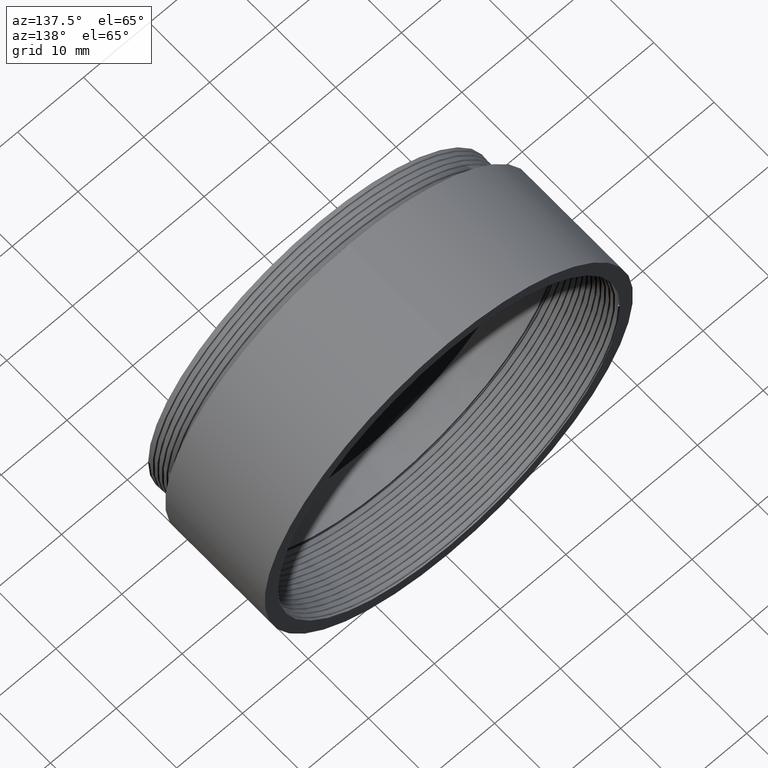
[diagram: clean part render]
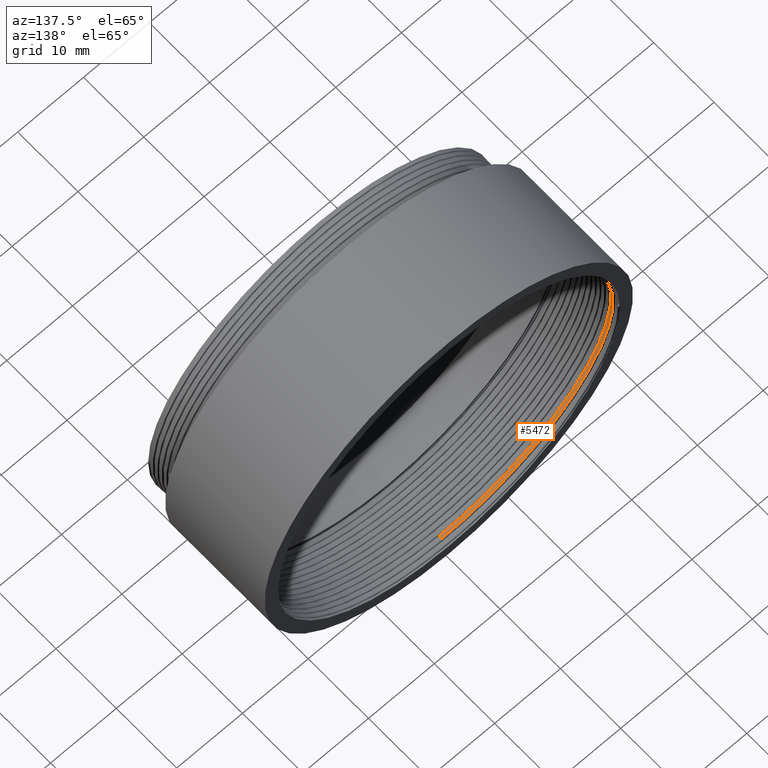
[diagram: same view with one face highlighted and labeled with its STEP entity id]
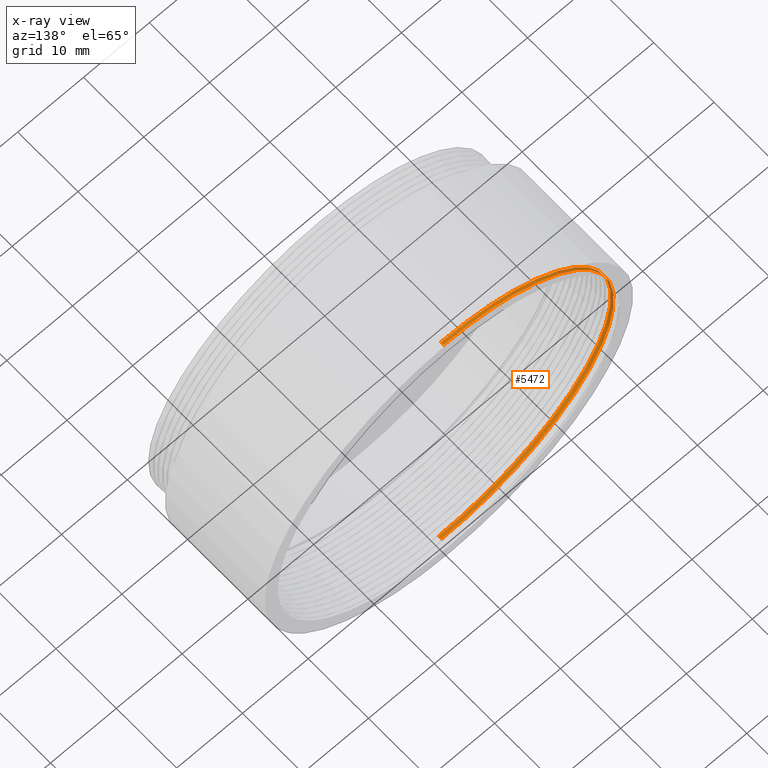
[diagram: x-ray of the same camera — body ghosted, the highlighted face saturated]
A machine part, auxiliary view. The second image highlights one B-rep face of the part: STEP entity #5472.
The next image is the same camera in x-ray: the body ghosted, the highlighted face saturated — about 0% of this face is hidden behind the body in this view.
In plain terms, the highlighted cylindrical surface (partial cylindrical patch) has radius 26 mm, axis along (-0, -1, -0).
Its self-contained STEP definition (entity closure, byte-faithful):
#5 = CARTESIAN_POINT ( 'NONE',  ( -26.00000000000000000, 19.99999999999999645, 0.000000000000000000 ) ) ;
#90 = CARTESIAN_POINT ( 'NONE',  ( -10.76955262170041117, 20.33156250086714678, -26.00000000000006395 ) ) ;
#208 = CARTESIAN_POINT ( 'NONE',  ( -25.99999999999999289, 20.51906250086715033, 10.76955262170048933 ) ) ;
#267 = VERTEX_POINT ( 'NONE', #2286 ) ;
#321 = CARTESIAN_POINT ( 'NONE',  ( -25.99999999999999289, 20.04687500000000000, 10.76955262170048933 ) ) ;
#377 = DIRECTION ( 'NONE',  ( -0.000000000000000000, -1.000000000000000000, -0.000000000000000000 ) ) ;
#395 = CARTESIAN_POINT ( 'NONE',  ( -1.592040838891559095E-15, 19.81249999999999645, -26.00000000000000000 ) ) ;
#583 = CARTESIAN_POINT ( 'NONE',  ( -18.38477631085023489, 20.37843750086715033, -18.38477631085023489 ) ) ;
#894 = CARTESIAN_POINT ( 'NONE',  ( -1.592040838891559095E-15, 20.28468750086715033, -26.00000000000000000 ) ) ;
#1119 = VERTEX_POINT ( 'NONE', #395 ) ;
#1277 = CARTESIAN_POINT ( 'NONE',  ( -18.38477631085022779, 20.09374999999999645, 18.38477631085023845 ) ) ;
#1486 = CARTESIAN_POINT ( 'NONE',  ( 4.776122516674677089E-15, 20.65968750086715033, 26.00000000000000000 ) ) ;
#1524 = DIRECTION ( 'NONE',  ( 0.000000000000000000, 0.000000000000000000, -1.000000000000000000 ) ) ;
#1605 = CARTESIAN_POINT ( 'NONE',  ( 0.000000000000000000, 0.000000000000000000, 0.000000000000000000 ) ) ;
#1630 = EDGE_CURVE ( 'NONE', #267, #1119, #3495, .T. ) ;
#1697 = CARTESIAN_POINT ( 'NONE',  ( -10.76955262170037209, 19.85937500000000355, -26.00000000000010303 ) ) ;
#1741 = AXIS2_PLACEMENT_3D ( 'NONE', #1605, #3299, #1524 ) ;
#1828 = ORIENTED_EDGE ( 'NONE', *, *, #1630, .T. ) ;
#2102 = DIRECTION ( 'NONE',  ( -0.000000000000000000, -1.000000000000000000, -0.000000000000000000 ) ) ;
#2286 = CARTESIAN_POINT ( 'NONE',  ( 4.776122516674677089E-15, 20.18749999999999645, 26.00000000000000000 ) ) ;
#2346 = CARTESIAN_POINT ( 'NONE',  ( -18.38477631085022779, 20.56593750086715033, 18.38477631085023845 ) ) ;
#2357 = EDGE_CURVE ( 'NONE', #2580, #267, #4627, .T. ) ;
#2359 = CARTESIAN_POINT ( 'NONE',  ( 4.776122516674677089E-15, 20.65968750086715033, 26.00000000000000000 ) ) ;
#2493 = LINE ( 'NONE', #4181, #3529 ) ;
#2533 = CARTESIAN_POINT ( 'NONE',  ( -10.76955262170057992, 20.14062500000000355, 25.99999999999988987 ) ) ;
#2580 = VERTEX_POINT ( 'NONE', #2359 ) ;
#2849 = FACE_OUTER_BOUND ( 'NONE', #3673, .T. ) ;
#2940 = CARTESIAN_POINT ( 'NONE',  ( -18.38477631085023489, 19.90624999999999645, -18.38477631085023489 ) ) ;
#2966 = CARTESIAN_POINT ( 'NONE',  ( -1.592040838891559095E-15, 19.81249999999999645, -26.00000000000000000 ) ) ;
#3062 = ORIENTED_EDGE ( 'NONE', *, *, #4653, .F. ) ;
#3177 = CARTESIAN_POINT ( 'NONE',  ( -1.592040838891559095E-15, 20.28468750086715033, -26.00000000000000000 ) ) ;
#3299 = DIRECTION ( 'NONE',  ( -0.000000000000000000, -1.000000000000000000, -0.000000000000000000 ) ) ;
#3495 =( BOUNDED_CURVE ( )  B_SPLINE_CURVE ( 2, ( #5054, #2533, #1277, #321, #5, #3705, #2940, #1697, #2966 ),
 .UNSPECIFIED., .F., .F. ) 
 B_SPLINE_CURVE_WITH_KNOTS ( ( 3, 2, 2, 2, 3 ),
 ( 0.1250000000000001110, 0.1339285714285715356, 0.1428571428571429602, 0.1517857142857143848, 0.1607142857142858372 ),
 .UNSPECIFIED. ) 
 CURVE ( )  GEOMETRIC_REPRESENTATION_ITEM ( )  RATIONAL_B_SPLINE_CURVE ( ( 0.9999999999999990008, 0.9238795325112877377, 1.000000000000000000, 0.9238795325112867385, 1.000000000000000000, 0.9238795325112867385, 1.000000000000000000, 0.9238795325112857393, 1.000000000000000888 ) ) 
 REPRESENTATION_ITEM ( '' )  );
#3529 = VECTOR ( 'NONE', #377, 1000.000000000000000 ) ;
#3592 = CARTESIAN_POINT ( 'NONE',  ( -26.00000000000000000, 20.47218750086715033, 0.000000000000000000 ) ) ;
#3673 = EDGE_LOOP ( 'NONE', ( #3062, #3890, #1828, #4931 ) ) ;
#3705 = CARTESIAN_POINT ( 'NONE',  ( -26.00000000000000000, 19.95312500000000000, -10.76955262170047334 ) ) ;
#3828 = EDGE_CURVE ( 'NONE', #4027, #1119, #2493, .T. ) ;
#3890 = ORIENTED_EDGE ( 'NONE', *, *, #2357, .T. ) ;
#3915 = CARTESIAN_POINT ( 'NONE',  ( -10.76955262170052130, 20.61281250086714323, 25.99999999999994671 ) ) ;
#4027 = VERTEX_POINT ( 'NONE', #894 ) ;
#4181 = CARTESIAN_POINT ( 'NONE',  ( 0.000000000000000000, 0.000000000000000000, -26.00000000000000000 ) ) ;
#4205 = CARTESIAN_POINT ( 'NONE',  ( 3.184081677783118191E-15, 0.000000000000000000, 26.00000000000000000 ) ) ;
#4353 = VECTOR ( 'NONE', #2102, 1000.000000000000000 ) ;
#4627 = LINE ( 'NONE', #4205, #4353 ) ;
#4653 = EDGE_CURVE ( 'NONE', #2580, #4027, #5459, .T. ) ;
#4931 = ORIENTED_EDGE ( 'NONE', *, *, #3828, .F. ) ;
#5054 = CARTESIAN_POINT ( 'NONE',  ( 4.776122516674677089E-15, 20.18749999999999645, 26.00000000000000000 ) ) ;
#5166 = CARTESIAN_POINT ( 'NONE',  ( -26.00000000000000000, 20.42531250086715389, -10.76955262170047334 ) ) ;
#5324 = CYLINDRICAL_SURFACE ( 'NONE', #1741, 26.00000000000000000 ) ;
#5459 =( BOUNDED_CURVE ( )  B_SPLINE_CURVE ( 2, ( #1486, #3915, #2346, #208, #3592, #5166, #583, #90, #3177 ),
 .UNSPECIFIED., .F., .T. ) 
 B_SPLINE_CURVE_WITH_KNOTS ( ( 3, 2, 2, 2, 3 ),
 ( 0.05357142857142861703, 0.06250000000000005551, 0.07142857142857148012, 0.08035714285714293248, 0.08928571428571435709 ),
 .UNSPECIFIED. ) 
 CURVE ( )  GEOMETRIC_REPRESENTATION_ITEM ( )  RATIONAL_B_SPLINE_CURVE ( ( 0.9999999999999995559, 0.9238795325112871826, 1.000000000000000000, 0.9238795325112867385, 1.000000000000000000, 0.9238795325112867385, 1.000000000000000000, 0.9238795325112861834, 1.000000000000000666 ) ) 
 REPRESENTATION_ITEM ( '' )  );
#5472 = ADVANCED_FACE ( 'NONE', ( #2849 ), #5324, .F. ) ;